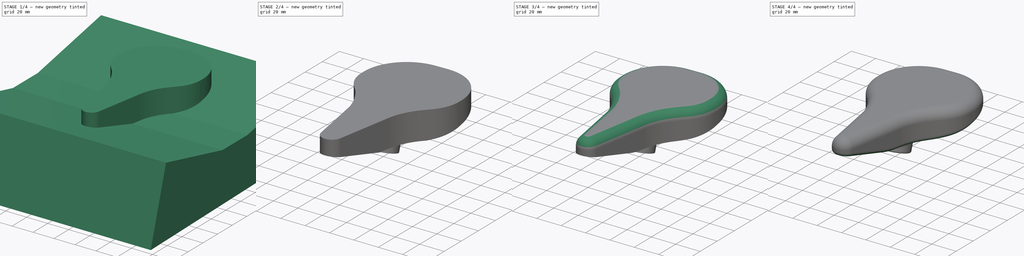
[diagram: build sequence overview — one tinted view per stage of 4, left to right]
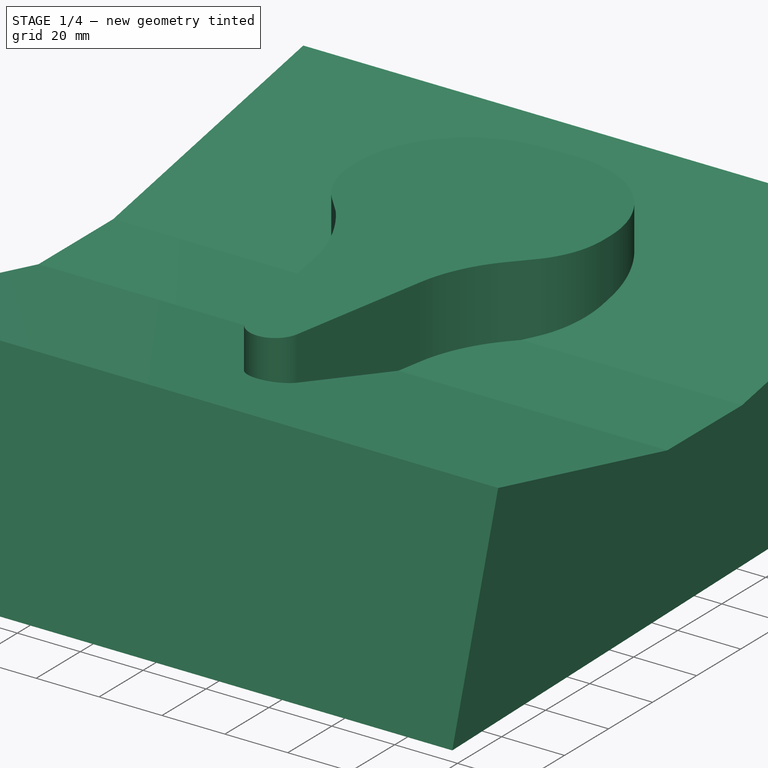
[diagram: stage 1 of 4 — iso view after this stage's code; geometry added in this stage tinted green]
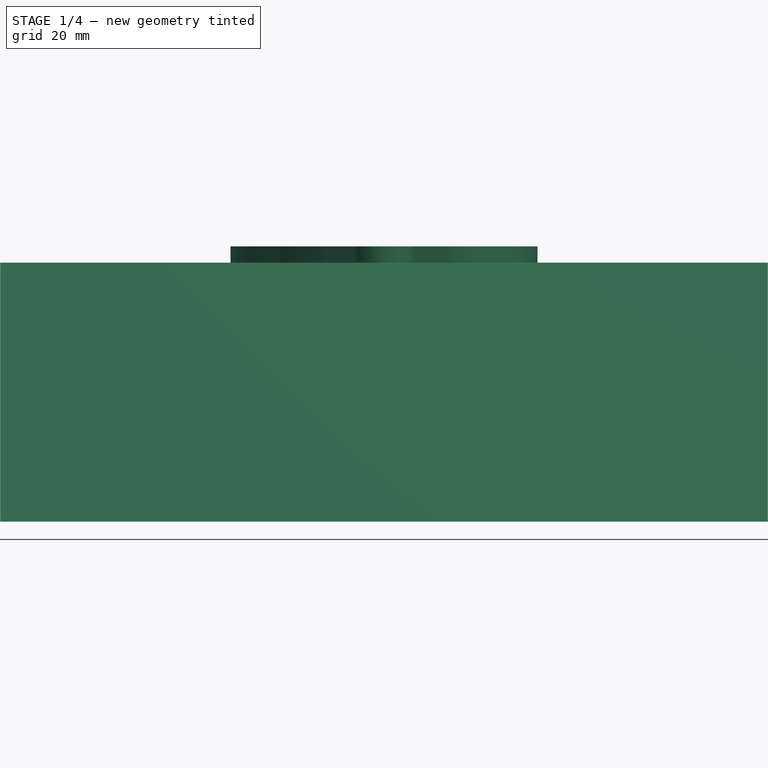
[diagram: stage 1 of 4 — front view after this stage's code; geometry added in this stage tinted green]
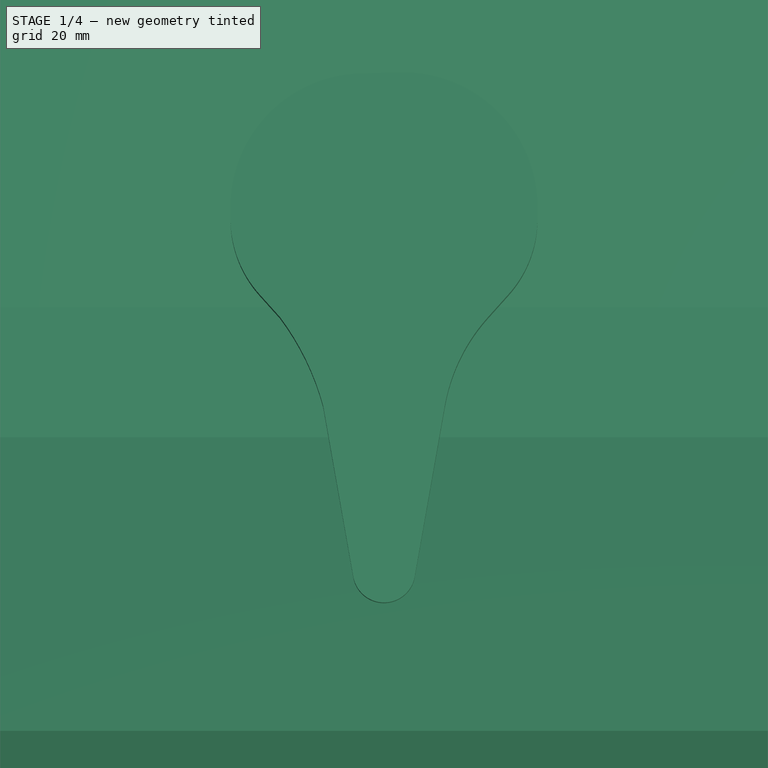
[diagram: stage 1 of 4 — top view after this stage's code; geometry added in this stage tinted green]
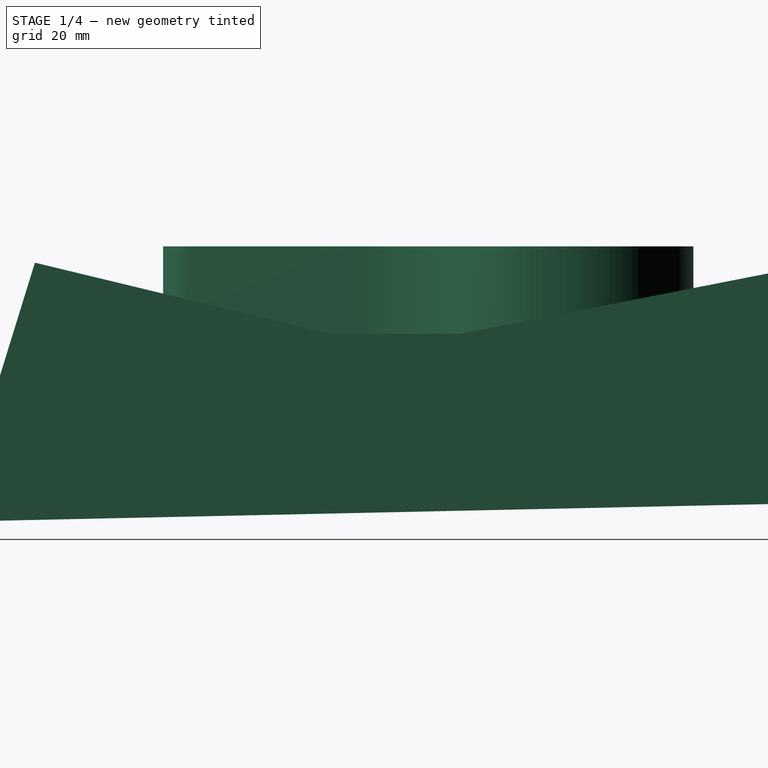
[diagram: stage 1 of 4 — right view after this stage's code; geometry added in this stage tinted green]
FCSTD DOCUMENT  (FreeCAD 0.16R)
Label: NewSeat
License: All rights reserved
LicenseURL: http://en.wikipedia.org/wiki/All_rights_reserved
objects: PartDesign::Fillet×5, Sketcher::SketchObject×3, PartDesign::Pad×2, Part::Cut×1, Part::Cylinder×1, Part::MultiFuse×1, PartDesign::Pocket×1
note: 17 computed .brp shape members not serialized (recipe doc carries the construction recipe); baked Part::Feature solids carry a one-line shape summary decoded from their .brp

FEATURE [Sketcher::SketchObject] Sketch
  sketch-geometry (14):
    g0: LineSegment StartX=-6.16981 StartY=129.707 StartZ=0 EndX=3.8259 EndY=130 EndZ=0
    g1: LineSegment StartX=-32.4486 StartY=72.1716 StartZ=0 EndX=-27.101 EndY=66.2215 EndZ=0
    g2: LineSegment StartX=32.4486 StartY=72.1716 StartZ=0 EndX=27.101 EndY=66.2215 EndZ=0
    g3: LineSegment StartX=-15.8549 StartY=43.1365 StartZ=0 EndX=-8 EndY=-1.41059 EndZ=0
    g4: LineSegment StartX=15.8549 StartY=43.1365 StartZ=0 EndX=8 EndY=-1.41058 EndZ=0
    g5: ArcOfCircle CenterX=0 CenterY=0 CenterZ=0 NormalX=0 NormalY=0 NormalZ=1 Radius=8.12341 StartAngle=3.31612 EndAngle=6.10866
    g6: ArcOfCircle CenterX=-81.9903 CenterY=25.1996 CenterZ=0 NormalX=0 NormalY=0 NormalZ=1 Radius=68.5247 StartAngle=0.264844 EndAngle=0.641808
    g7: ArcOfCircle CenterX=61.8013 CenterY=35.0349 CenterZ=0 NormalX=0 NormalY=0 NormalZ=1 Radius=46.6553 StartAngle=2.40947 EndAngle=2.96706
    g8: ArcOfCircle CenterX=4.8556 CenterY=94.8707 CenterZ=0 NormalX=0 NormalY=0 NormalZ=1 Radius=35.1444 StartAngle=9.0295e-08 EndAngle=1.6001
    g9: ArcOfCircle CenterX=-5.14871 CenterY=94.8707 CenterZ=0 NormalX=0 NormalY=0 NormalZ=1 Radius=34.8513 StartAngle=1.6001 EndAngle=3.14159
    g10: LineSegment StartX=-40 StartY=91.8707 StartZ=0 EndX=-40 EndY=94.8707 EndZ=0
    g11: LineSegment StartX=40 StartY=91.8707 StartZ=0 EndX=40 EndY=94.8707 EndZ=0
    g12: ArcOfCircle CenterX=-10.53 CenterY=91.8707 CenterZ=0 NormalX=0 NormalY=0 NormalZ=1 Radius=29.47 StartAngle=3.14159 EndAngle=3.87371
    g13: ArcOfCircle CenterX=10.53 CenterY=91.8707 CenterZ=0 NormalX=0 NormalY=0 NormalZ=1 Radius=29.47 StartAngle=5.55107 EndAngle=6.28319
  constraints (41):
    c: Symmetric(g2,g1,g-2)
    c: Symmetric(g2,g1,g-2)
    c: Symmetric(g4,g3,g-2)
    c: Tangent(g4,g5)
    c: Coincident(g6,g1)
    c: Tangent(g7,g2)
    c: Coincident(g6,g3)
    c: Tangent(g4,g7)
    c: Vertical(g11)
    c: Vertical(g10)
    c: Coincident(g10,g9)
    c: Coincident(g8,g11)
    c: Coincident(g8,g0)
    c: Distance(g11) = 3
    c: Coincident(g13,g2)
    c: Coincident(g12,g1)
    c: Coincident(g13,g11)
    c: Coincident(g12,g10)
    c: Tangent(g13,g11)
    c: Symmetric(g11,g10,g-2)
    c: Tangent(g2,g13)
    c: Tangent(g8,g11)
    c: Tangent(g8,g0)
    c: Tangent(g10,g9)
    c: Tangent(g12,g10)
    c: Distance(g1) = 8
    c: DistanceX(g4) = 8
    c: DistanceX(g11) = 40
    c: DistanceY(g0) = 130
    c: Angle(g4) = -1.74533
    c: Distance(g0) = 10
    c: DistanceX(g2) = 32.4486
    c: Equal(g11,g10)
    c: Coincident(g9,g0)
    c: Tangent(g0,g9)
    c: Coincident(g7,g2)
    c: Coincident(g7,g4)
    c: Coincident(g4,g5)
    c: Coincident(g5,g3)
    c: Tangent(g5,g3)
    c: Coincident(g5,g-1)
FEATURE [PartDesign::Pad] Pad
  Length = 30
  Length2 = 100
  Sketch = -> Sketch
  Type = 0
FEATURE [Sketcher::SketchObject] Sketch004
  Placement = pos=(0,0,0) rot=(0.57735,0.57735,0.57735;2.0944rad)
  sketch-geometry (6):
    g0: LineSegment StartX=-41.535 StartY=25.74 StartZ=0 EndX=35.295 EndY=7.215 EndZ=0
    g1: LineSegment StartX=35.295 StartY=7.215 StartZ=0 EndX=69.225 EndY=7.215 EndZ=0
    g2: LineSegment StartX=69.225 StartY=7.215 StartZ=0 EndX=155.568 EndY=24.1321 EndZ=0
    g3: LineSegment StartX=155.568 StartY=24.1321 StartZ=0 EndX=161.223 EndY=-36.9029 EndZ=0
    g4: LineSegment StartX=161.223 StartY=-36.9029 StartZ=0 EndX=-62.4 EndY=-41.73 EndZ=0
    g5: LineSegment StartX=-62.4 StartY=-41.73 StartZ=0 EndX=-41.535 EndY=25.74 EndZ=0
  constraints (7):
    c: Coincident(g0,g1)
    c: Horizontal(g1)
    c: Coincident(g1,g2)
    c: Coincident(g2,g3)
    c: Coincident(g3,g4)
    c: Coincident(g4,g5)
    c: Coincident(g5,g0)
FEATURE [PartDesign::Pad] Pad001
  Length = 200
  Length2 = 100
  Midplane = true
  Placement = pos=(0,0,0) rot=(0.57735,0.57735,0.57735;2.0944rad)
  Sketch = -> Sketch004
  Type = 0
FEATURE [Part::Cylinder] Cylinder
  Angle = 360
  Height = 21
  Placement = pos=(0,58,-3) rot=(-1,0,0;0.314159rad)
  Radius = 12
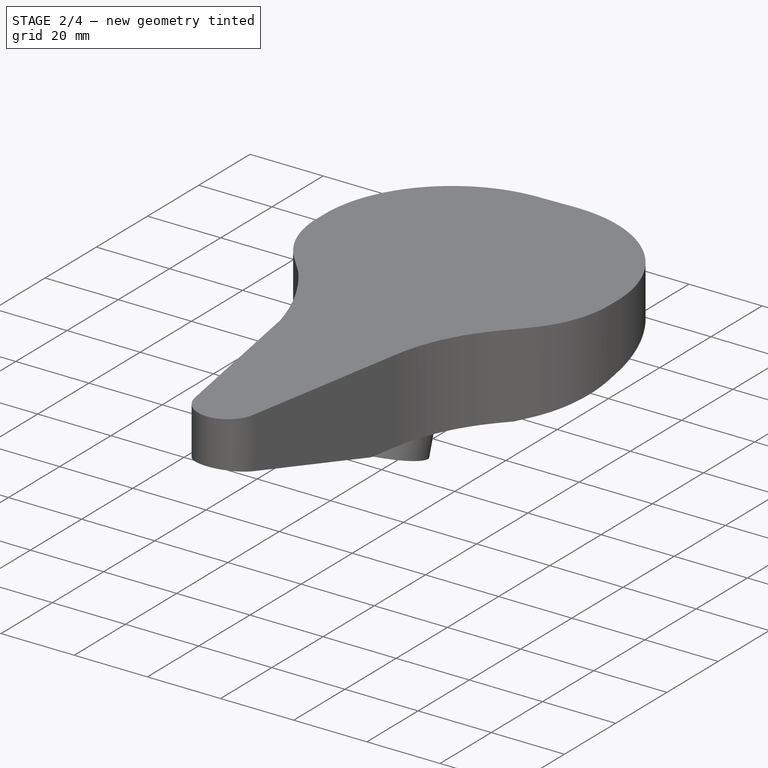
[diagram: stage 2 of 4 — iso view after this stage's code; geometry added in this stage tinted green]
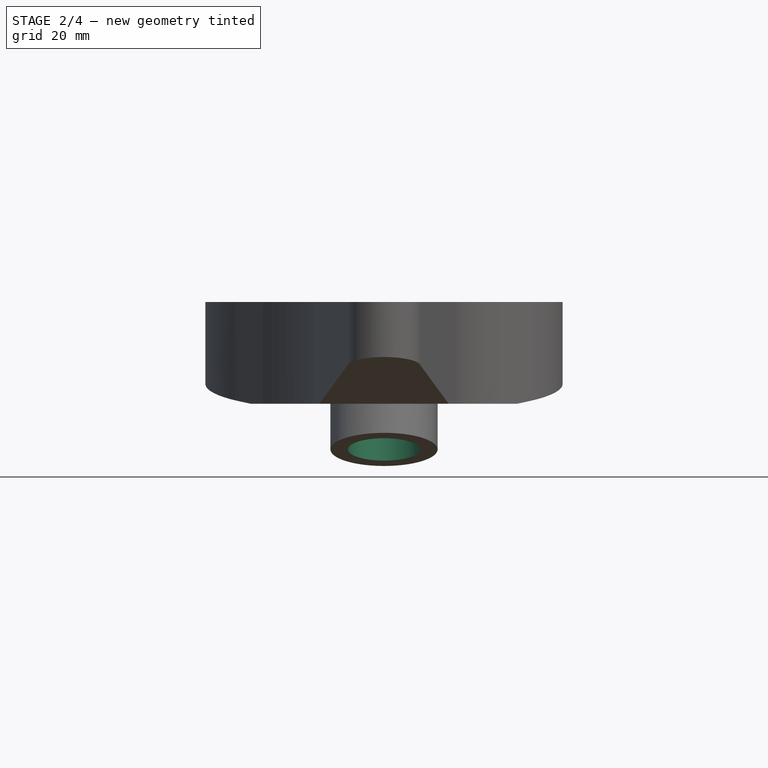
[diagram: stage 2 of 4 — front view after this stage's code; geometry added in this stage tinted green]
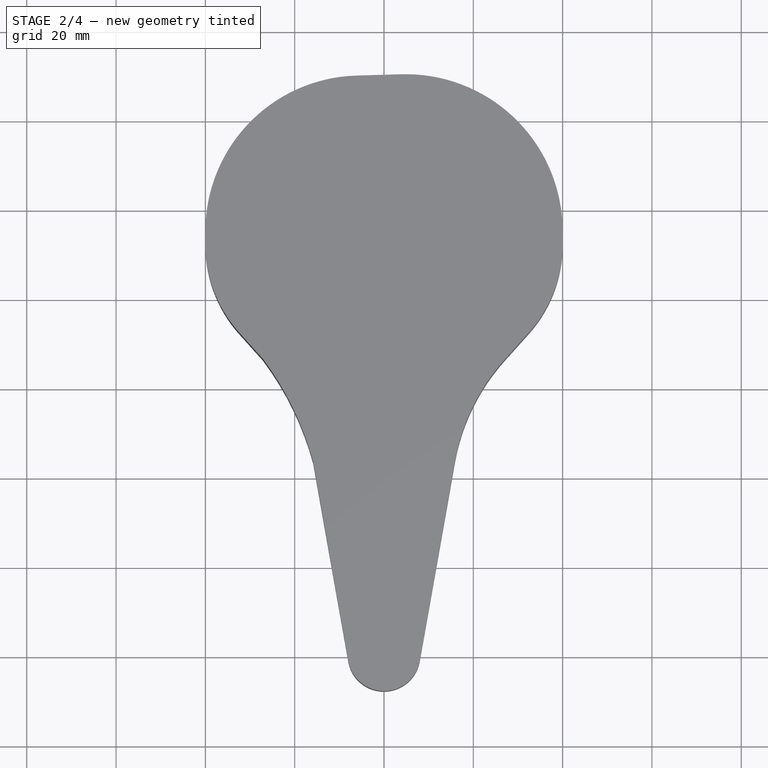
[diagram: stage 2 of 4 — top view after this stage's code; geometry added in this stage tinted green]
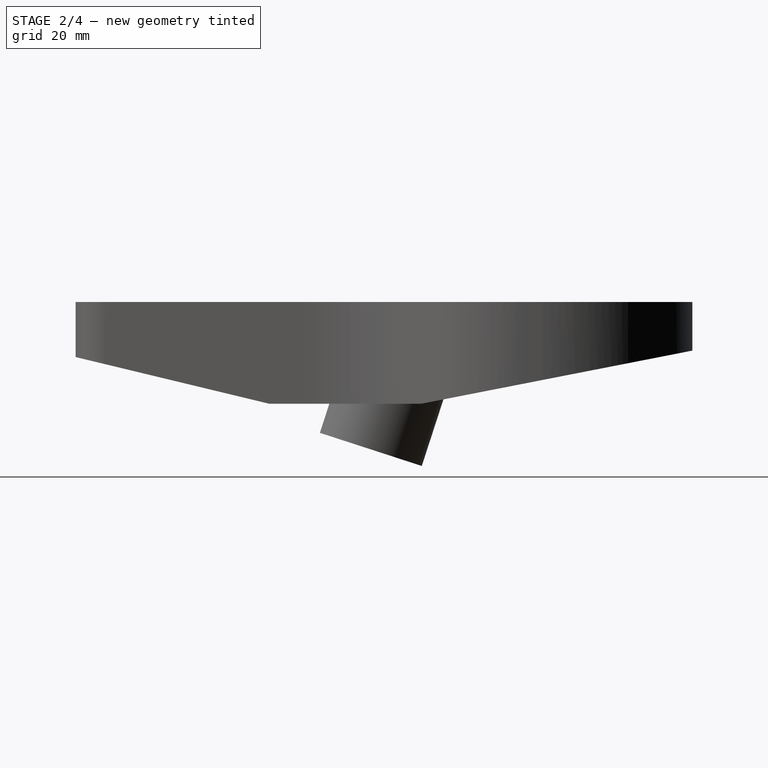
[diagram: stage 2 of 4 — right view after this stage's code; geometry added in this stage tinted green]
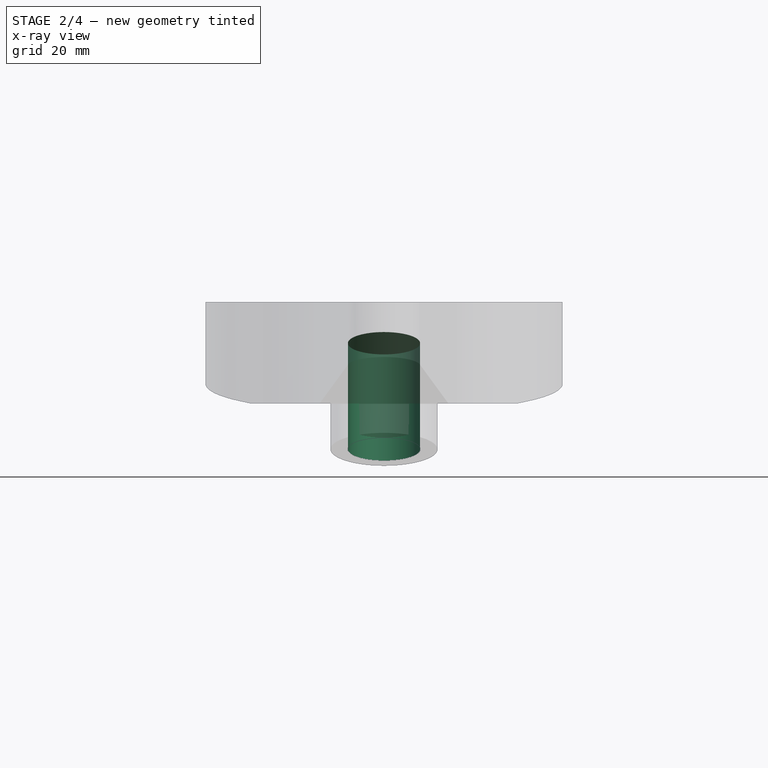
[diagram: stage 2 of 4 — x-ray composite at the front view; earlier geometry ghosted, this stage's added geometry solid]
FEATURE [Part::Cut] Cut
  Base = -> Pad
  Tool = -> Pad001
FEATURE [Part::MultiFuse] Fusion
  Shapes = -> [Cut,Cylinder]
FEATURE [Sketcher::SketchObject] Sketch005
  ExternalGeometry = -> [Fusion]
  Placement = pos=(0,4.65683,14.3322) rot=(1,0,0;2.82743rad)
  Support = -> Fusion [Face1]
  sketch-geometry (1):
    g0: Circle CenterX=0 CenterY=-56.0883 CenterZ=0 NormalX=0 NormalY=0 NormalZ=1 Radius=8.1
  constraints (2):
    c: Radius(g0) = 8.1
    c: Coincident(g0,g-3)
FEATURE [PartDesign::Pocket] Pocket
  Length = 25
  Sketch = -> Sketch005
  Type = 0
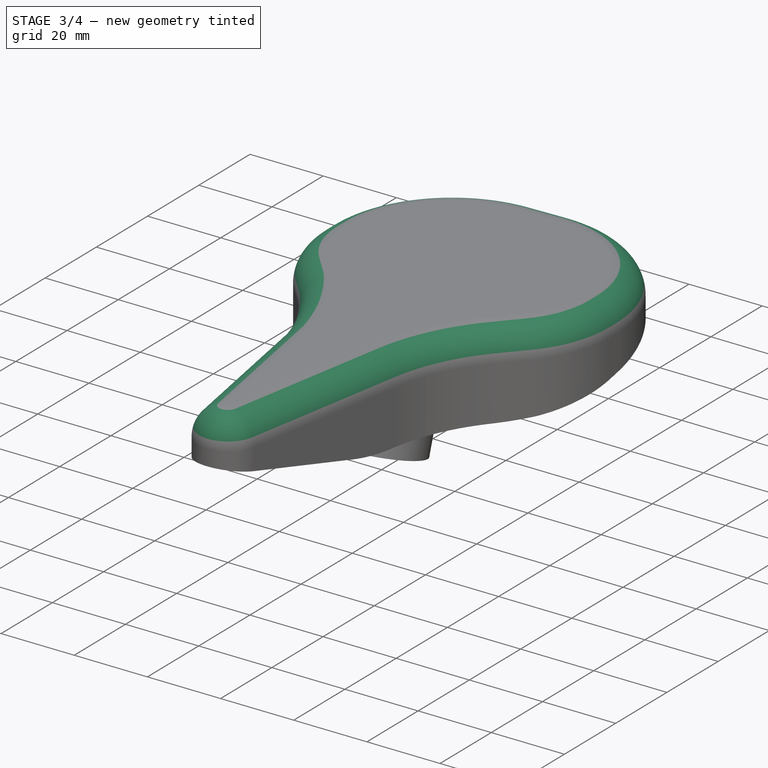
[diagram: stage 3 of 4 — iso view after this stage's code; geometry added in this stage tinted green]
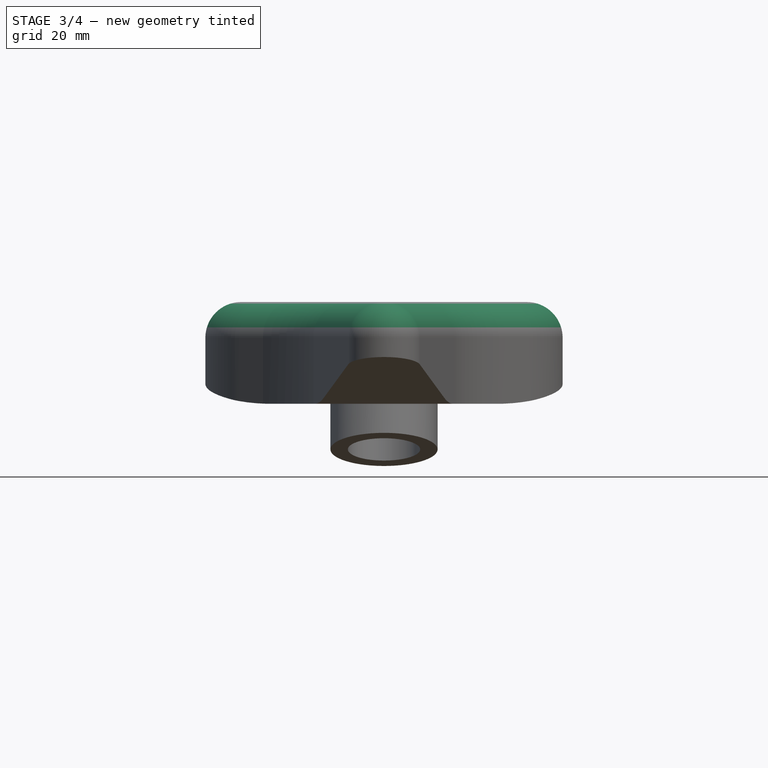
[diagram: stage 3 of 4 — front view after this stage's code; geometry added in this stage tinted green]
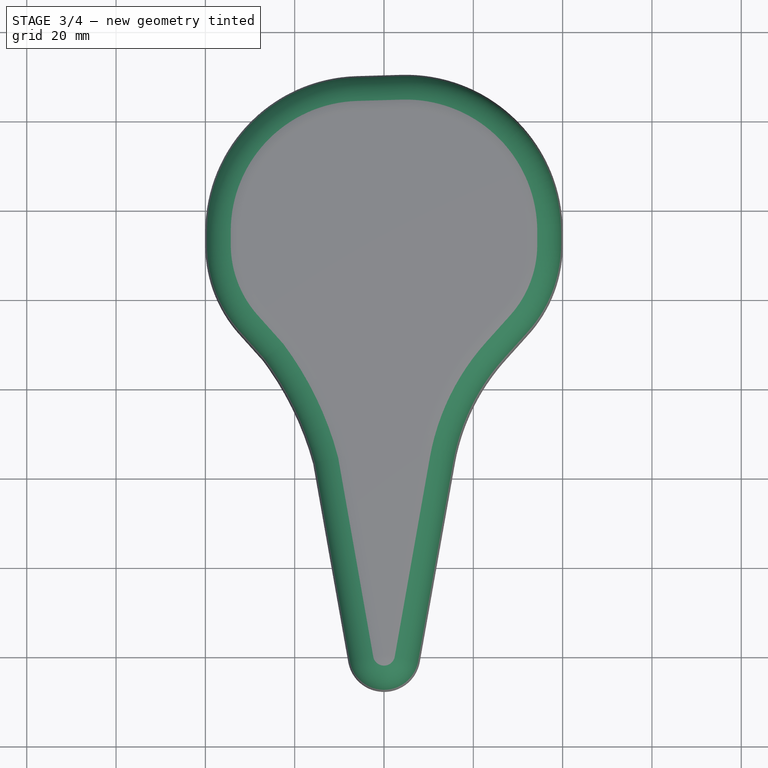
[diagram: stage 3 of 4 — top view after this stage's code; geometry added in this stage tinted green]
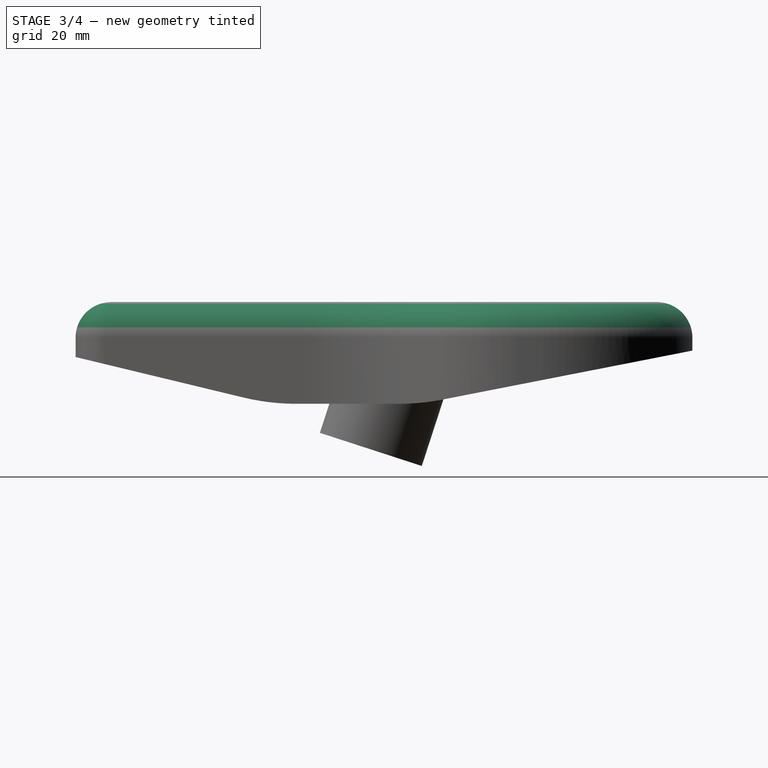
[diagram: stage 3 of 4 — right view after this stage's code; geometry added in this stage tinted green]
FEATURE [PartDesign::Fillet] Fillet
  Base = -> Pocket [Edge36]
  Radius = 8
FEATURE [PartDesign::Fillet] Fillet001
  Base = -> Fillet [Edge15,Edge12,Edge19]
  Radius = 50
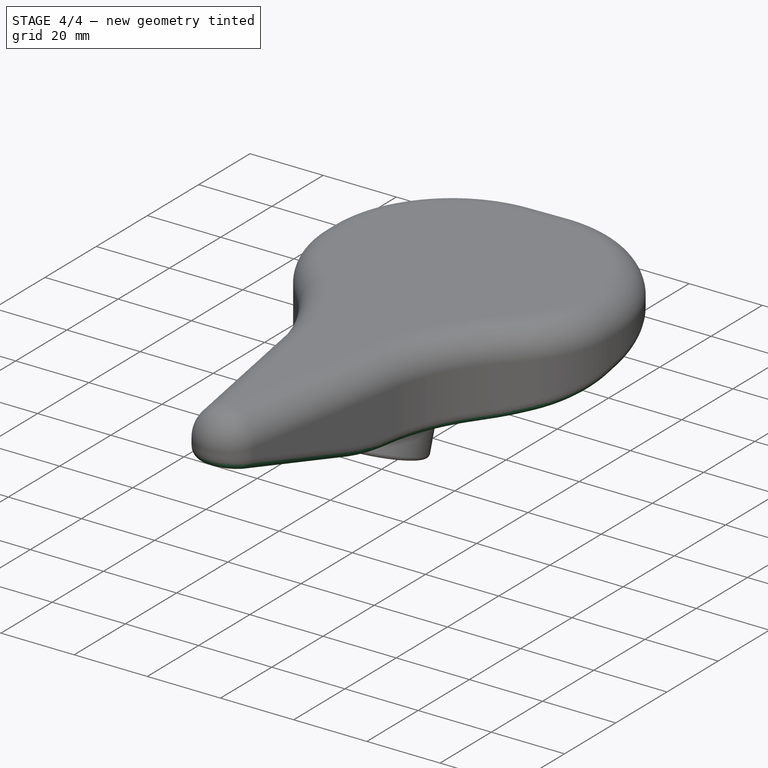
[diagram: stage 4 of 4 — iso view after this stage's code; geometry added in this stage tinted green]
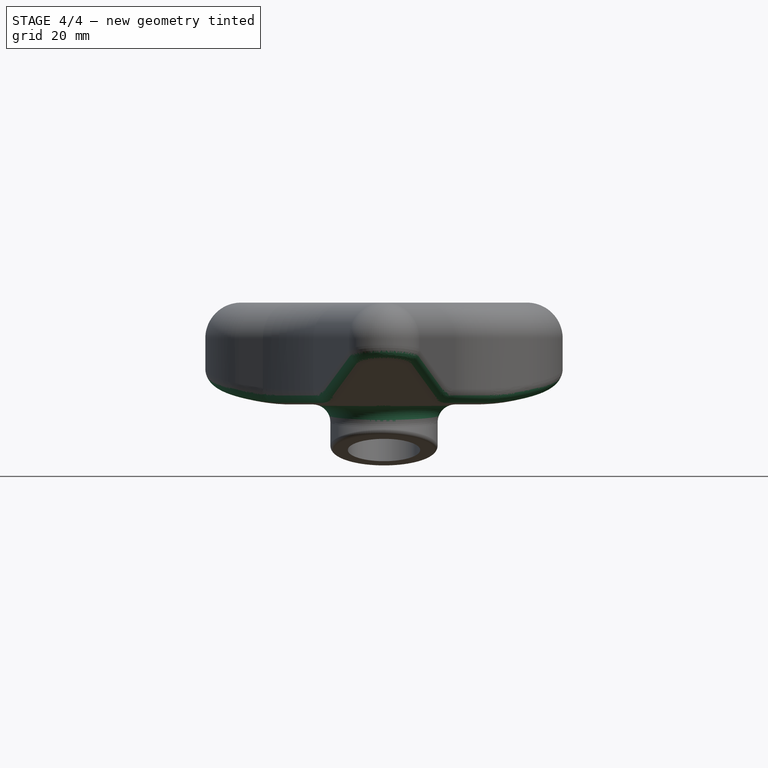
[diagram: stage 4 of 4 — front view after this stage's code; geometry added in this stage tinted green]
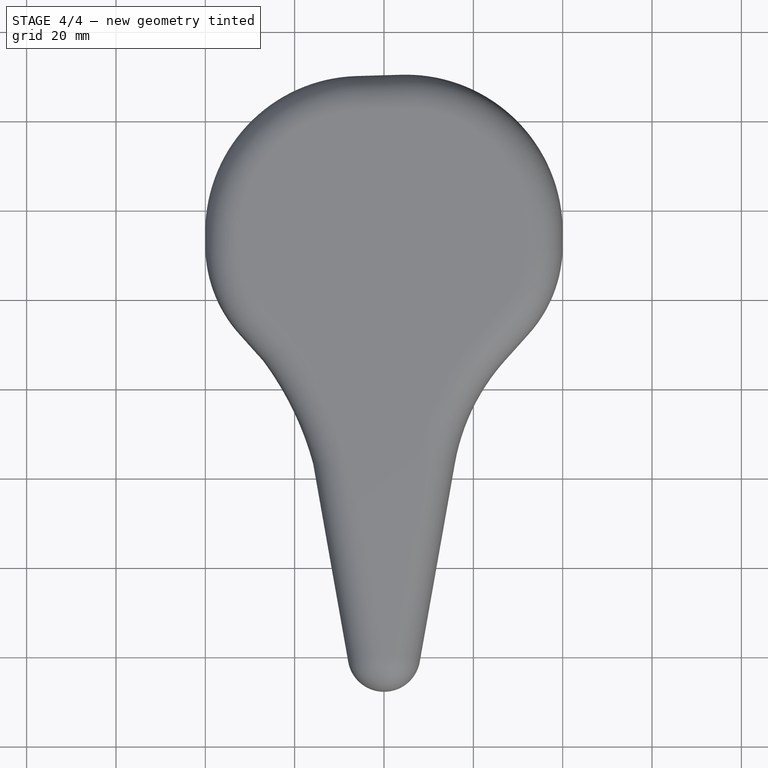
[diagram: stage 4 of 4 — top view after this stage's code; geometry added in this stage tinted green]
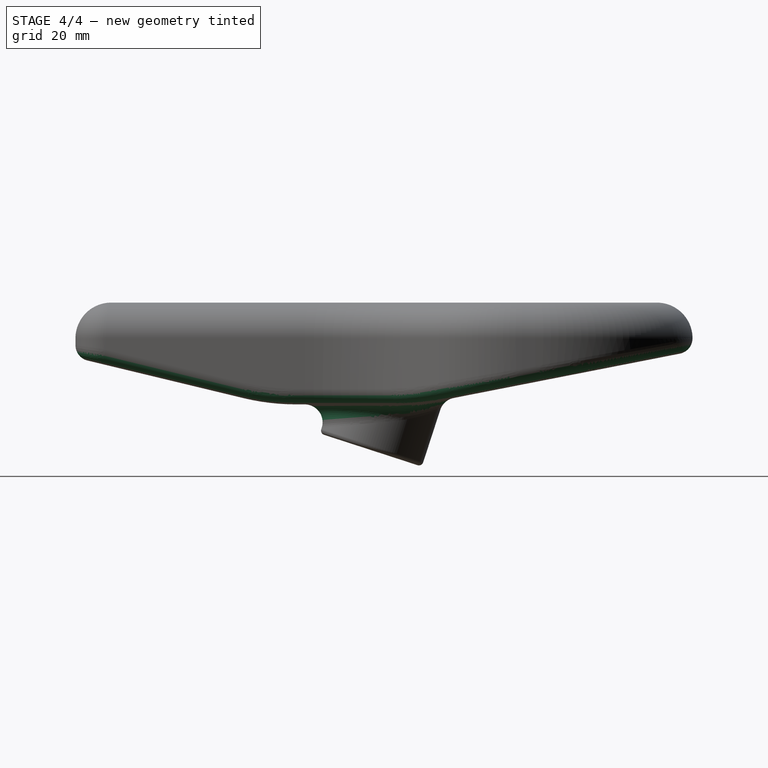
[diagram: stage 4 of 4 — right view after this stage's code; geometry added in this stage tinted green]
FEATURE [PartDesign::Fillet] Fillet002
  Base = -> Fillet001 [Edge17]
  Radius = 4
FEATURE [PartDesign::Fillet] Fillet003
  Base = -> Fillet002 [Edge57]
  Radius = 1
FEATURE [PartDesign::Fillet] Fillet004
  Base = -> Fillet003 [Edge39]
  Radius = 3.5
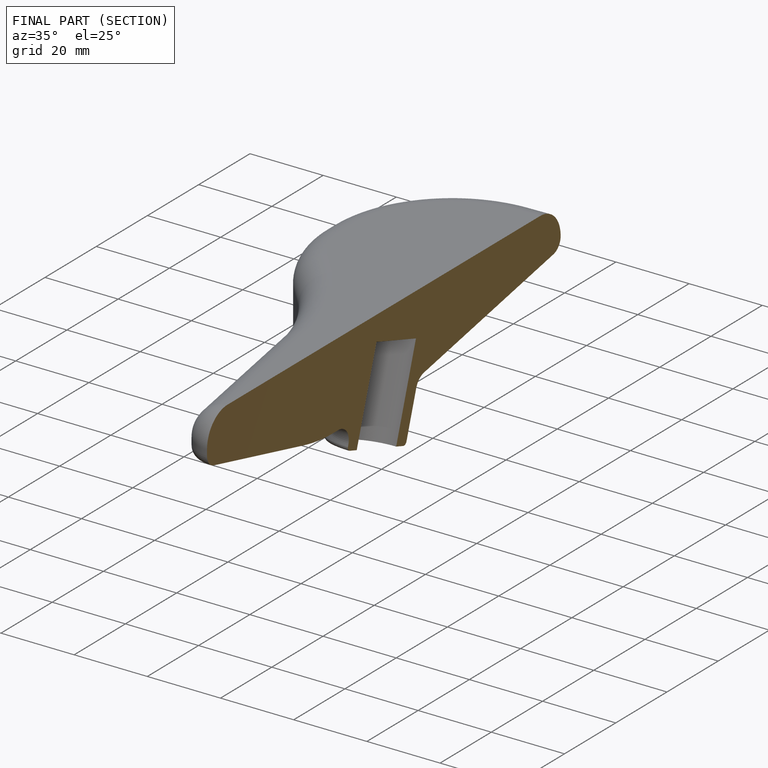
[diagram: finished part — half-section view (interior)]
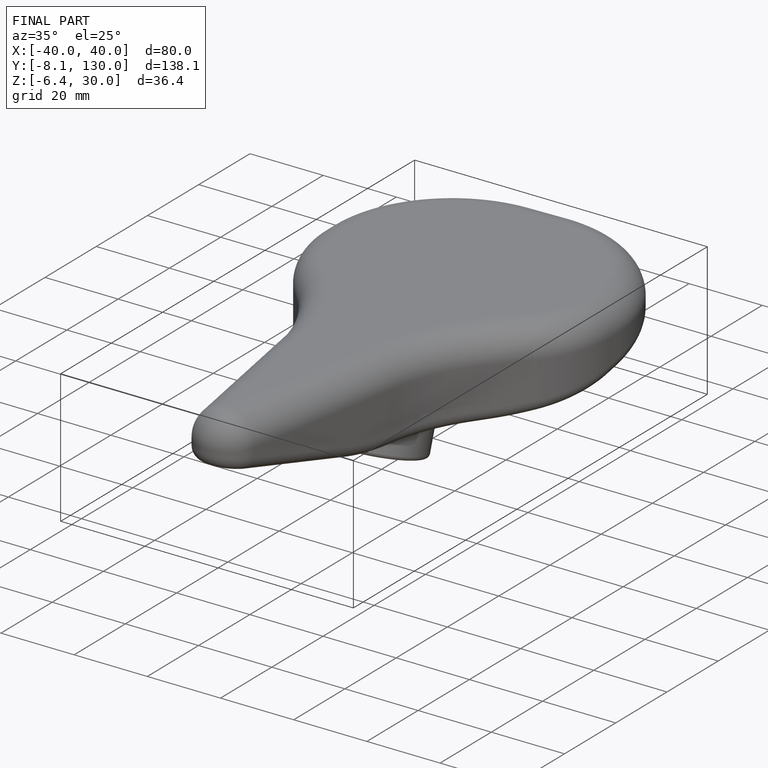
[diagram: finished part — iso view with bounding-box wireframe]
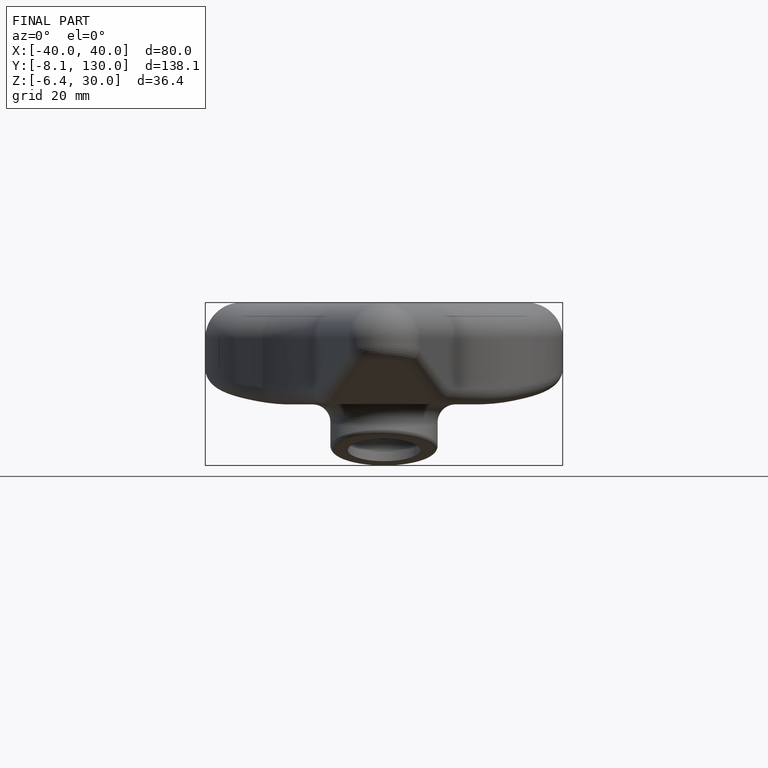
[diagram: finished part — front view with bounding-box wireframe]
